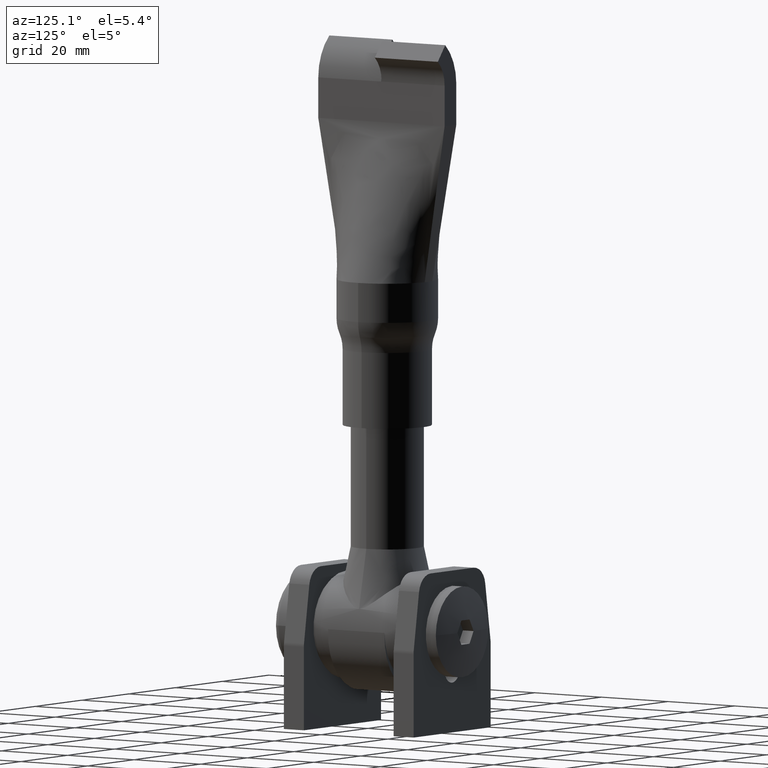
[diagram: clean part render]
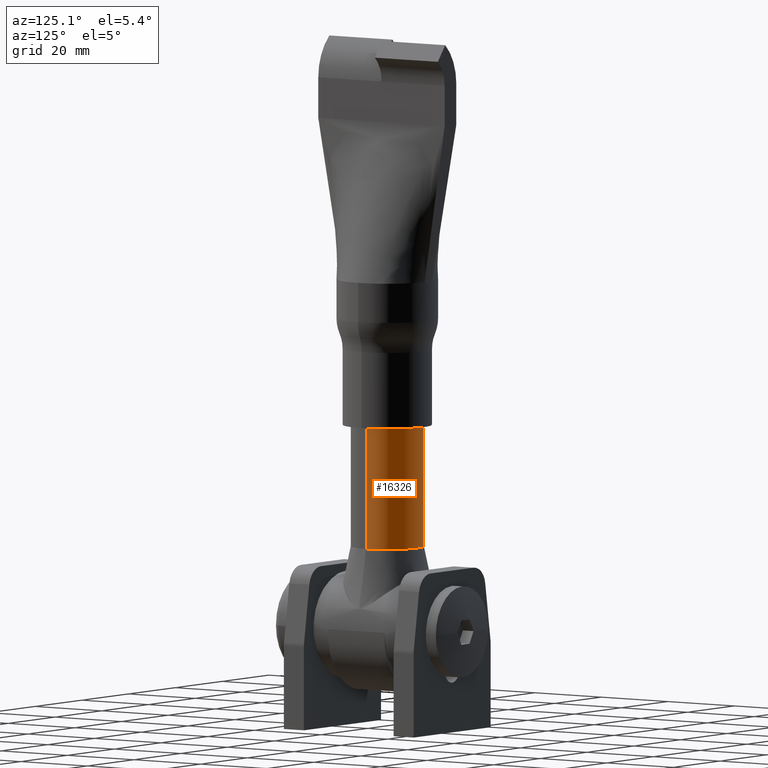
[diagram: same view with one face highlighted and labeled with its STEP entity id]
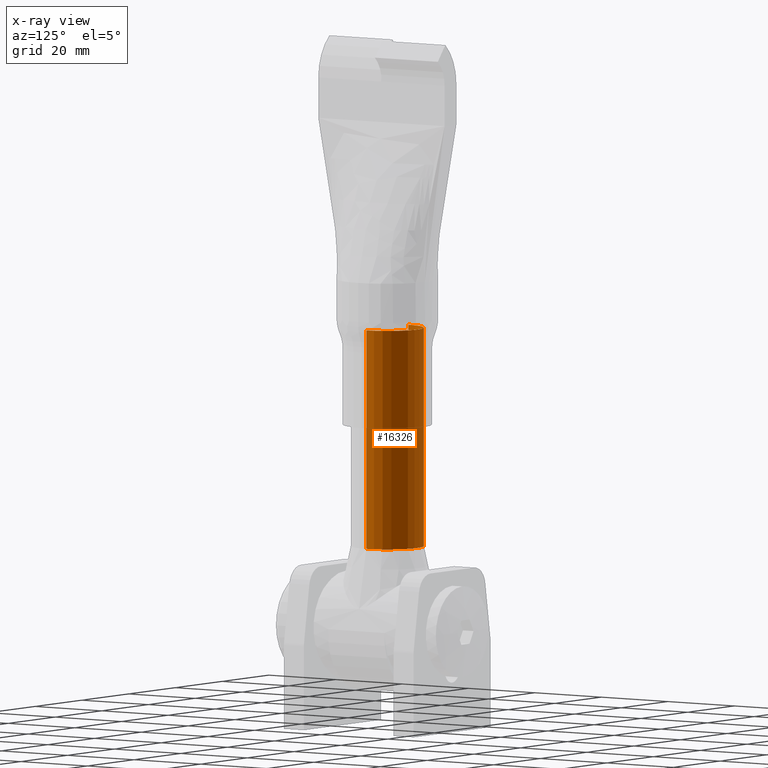
[diagram: x-ray of the same camera — body ghosted, the highlighted face saturated]
A machine part, auxiliary view. The second image highlights one B-rep face of the part: STEP entity #16326.
The next image is the same camera in x-ray: the body ghosted, the highlighted face saturated — about 0% of this face is hidden behind the body in this view.
In plain terms, the highlighted cylindrical surface (partial cylindrical patch) has radius 9 mm, axis along (0, 0, 1).
Its self-contained STEP definition (entity closure, byte-faithful):
#560 = CARTESIAN_POINT ( 'NONE',  ( 9.000000000000000000, 0.0000000000000000000, 74.00000000000000000 ) ) ;
#1517 = VERTEX_POINT ( 'NONE', #6536 ) ;
#1905 = CARTESIAN_POINT ( 'NONE',  ( -9.000000000000000000, 1.102182119232617700E-015, 19.99999999999999600 ) ) ;
#2837 = AXIS2_PLACEMENT_3D ( 'NONE', #6036, #17226, #12366 ) ;
#4584 = ORIENTED_EDGE ( 'NONE', *, *, #17346, .T. ) ;
#5460 = DIRECTION ( 'NONE',  ( 1.000000000000000000, 0.0000000000000000000, 0.0000000000000000000 ) ) ;
#6036 = CARTESIAN_POINT ( 'NONE',  ( 0.0000000000000000000, 0.0000000000000000000, 74.00000000000000000 ) ) ;
#6244 = AXIS2_PLACEMENT_3D ( 'NONE', #18279, #18417, #15349 ) ;
#6427 = AXIS2_PLACEMENT_3D ( 'NONE', #13317, #15045, #5460 ) ;
#6536 = CARTESIAN_POINT ( 'NONE',  ( -9.000000000000000000, 0.0000000000000000000, 19.99999999999999600 ) ) ;
#6972 = LINE ( 'NONE', #12137, #17237 ) ;
#7204 = EDGE_CURVE ( 'NONE', #11794, #1517, #9879, .T. ) ;
#7329 = DIRECTION ( 'NONE',  ( 0.0000000000000000000, 0.0000000000000000000, 1.000000000000000000 ) ) ;
#7737 = ORIENTED_EDGE ( 'NONE', *, *, #17592, .F. ) ;
#8039 = EDGE_LOOP ( 'NONE', ( #10366, #4584, #8331, #7737 ) ) ;
#8331 = ORIENTED_EDGE ( 'NONE', *, *, #17029, .T. ) ;
#9725 = CIRCLE ( 'NONE', #2837, 9.000000000000000000 ) ;
#9879 = CIRCLE ( 'NONE', #6244, 9.000000000000000000 ) ;
#9910 = DIRECTION ( 'NONE',  ( 0.0000000000000000000, 0.0000000000000000000, 1.000000000000000000 ) ) ;
#9943 = VECTOR ( 'NONE', #9910, 1000.000000000000000 ) ;
#10366 = ORIENTED_EDGE ( 'NONE', *, *, #7204, .T. ) ;
#10931 = CARTESIAN_POINT ( 'NONE',  ( -9.000000000000000000, 1.102182119232617700E-015, 74.00000000000000000 ) ) ;
#10996 = CYLINDRICAL_SURFACE ( 'NONE', #6427, 9.000000000000000000 ) ;
#11794 = VERTEX_POINT ( 'NONE', #13686 ) ;
#12137 = CARTESIAN_POINT ( 'NONE',  ( 9.000000000000000000, 0.0000000000000000000, 19.99999999999999600 ) ) ;
#12366 = DIRECTION ( 'NONE',  ( 1.000000000000000000, 0.0000000000000000000, 0.0000000000000000000 ) ) ;
#13317 = CARTESIAN_POINT ( 'NONE',  ( 0.0000000000000000000, 0.0000000000000000000, 19.99999999999999600 ) ) ;
#13686 = CARTESIAN_POINT ( 'NONE',  ( 9.000000000000000000, 1.293748228990657500E-015, 19.99999999999999600 ) ) ;
#13741 = FACE_OUTER_BOUND ( 'NONE', #8039, .T. ) ;
#14585 = VERTEX_POINT ( 'NONE', #10931 ) ;
#14718 = LINE ( 'NONE', #1905, #9943 ) ;
#15045 = DIRECTION ( 'NONE',  ( 0.0000000000000000000, 0.0000000000000000000, 1.000000000000000000 ) ) ;
#15349 = DIRECTION ( 'NONE',  ( 1.000000000000000000, 0.0000000000000000000, 0.0000000000000000000 ) ) ;
#16326 = ADVANCED_FACE ( 'NONE', ( #13741 ), #10996, .T. ) ;
#16806 = VERTEX_POINT ( 'NONE', #560 ) ;
#17029 = EDGE_CURVE ( 'NONE', #14585, #16806, #9725, .T. ) ;
#17226 = DIRECTION ( 'NONE',  ( 0.0000000000000000000, 0.0000000000000000000, -1.000000000000000000 ) ) ;
#17237 = VECTOR ( 'NONE', #7329, 1000.000000000000000 ) ;
#17346 = EDGE_CURVE ( 'NONE', #1517, #14585, #14718, .T. ) ;
#17592 = EDGE_CURVE ( 'NONE', #11794, #16806, #6972, .T. ) ;
#18279 = CARTESIAN_POINT ( 'NONE',  ( 0.0000000000000000000, 0.0000000000000000000, 19.99999999999999600 ) ) ;
#18417 = DIRECTION ( 'NONE',  ( 0.0000000000000000000, 0.0000000000000000000, 1.000000000000000000 ) ) ;